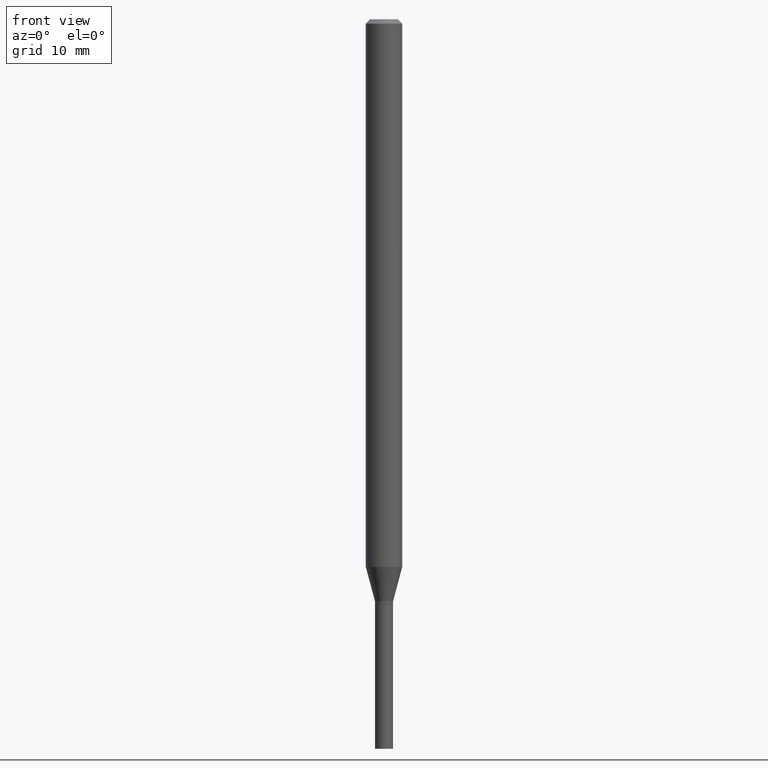
[diagram: clean part render]
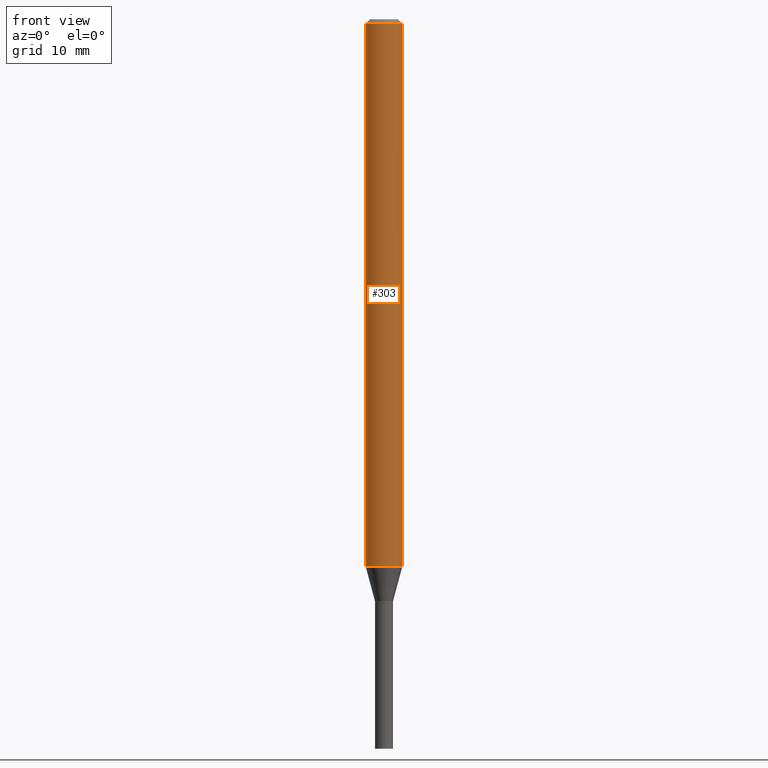
[diagram: same view with one face highlighted and labeled with its STEP entity id]
A machine part, front view. The second image highlights one B-rep face of the part: STEP entity #303.
In plain terms, the highlighted cylindrical surface (edge-blend (fillet) strip) has radius 1.5875 mm, axis along (-0, 0, 1).
Its self-contained STEP definition (entity closure, byte-faithful):
#3 = DIRECTION ( 'NONE',  ( 1.000000000000000000, -6.982962677686266711E-15, 4.876176775795935793E-29 ) ) ;
#8 = FACE_OUTER_BOUND ( 'NONE', #290, .T. ) ;
#26 = AXIS2_PLACEMENT_3D ( 'NONE', #237, #129, #95 ) ;
#53 = VERTEX_POINT ( 'NONE', #463 ) ;
#55 = CARTESIAN_POINT ( 'NONE',  ( -0.06250000000000000000, -6.107467428670576391E-15, -1.876440399561581707 ) ) ;
#68 = EDGE_CURVE ( 'NONE', #453, #53, #123, .T. ) ;
#85 = VERTEX_POINT ( 'NONE', #55 ) ;
#91 = ORIENTED_EDGE ( 'NONE', *, *, #68, .T. ) ;
#93 = CARTESIAN_POINT ( 'NONE',  ( 0.06250000000000000000, -4.364351673553916694E-16, 3.047610484872459871E-30 ) ) ;
#95 = DIRECTION ( 'NONE',  ( 1.000000000000000000, -6.982962677686262766E-15, 0.000000000000000000 ) ) ;
#98 = VECTOR ( 'NONE', #277, 39.37007874015748143 ) ;
#119 = CIRCLE ( 'NONE', #243, 0.06250000000000000000 ) ;
#122 = ORIENTED_EDGE ( 'NONE', *, *, #252, .F. ) ;
#123 = LINE ( 'NONE', #93, #323 ) ;
#129 = DIRECTION ( 'NONE',  ( -2.445468806185136597E-29, 3.491481338843145583E-15, 1.000000000000000000 ) ) ;
#136 = CARTESIAN_POINT ( 'NONE',  ( -0.06250000000000000000, -2.857875219451580624E-15, -0.01499999999999999944 ) ) ;
#144 = EDGE_CURVE ( 'NONE', #85, #453, #348, .T. ) ;
#151 = EDGE_CURVE ( 'NONE', #85, #336, #244, .T. ) ;
#157 = CARTESIAN_POINT ( 'NONE',  ( 0.06250000000000000000, -6.987991805876030676E-15, -1.876440399561581707 ) ) ;
#173 = CARTESIAN_POINT ( 'NONE',  ( -0.06250000000000000000, 4.440892098500626162E-16, -3.074334431409316114E-30 ) ) ;
#177 = DIRECTION ( 'NONE',  ( -2.445468806185136597E-29, 3.491481338843145583E-15, 1.000000000000000000 ) ) ;
#179 = CYLINDRICAL_SURFACE ( 'NONE', #429, 0.06250000000000000000 ) ;
#208 = CARTESIAN_POINT ( 'NONE',  ( 3.668203209277705088E-31, -5.237222008264718399E-17, -0.01499999999999999944 ) ) ;
#220 = ORIENTED_EDGE ( 'NONE', *, *, #144, .T. ) ;
#237 = CARTESIAN_POINT ( 'NONE',  ( 4.588776463793421999E-29, -6.551556638520639007E-15, -1.876440399561581707 ) ) ;
#243 = AXIS2_PLACEMENT_3D ( 'NONE', #208, #177, #294 ) ;
#244 = LINE ( 'NONE', #173, #98 ) ;
#249 = ORIENTED_EDGE ( 'NONE', *, *, #151, .F. ) ;
#252 = EDGE_CURVE ( 'NONE', #336, #53, #119, .T. ) ;
#277 = DIRECTION ( 'NONE',  ( -2.445468806185136877E-29, 3.491481338843145188E-15, 1.000000000000000000 ) ) ;
#279 = DIRECTION ( 'NONE',  ( -2.445468806185136877E-29, 3.491481338843145188E-15, 1.000000000000000000 ) ) ;
#290 = EDGE_LOOP ( 'NONE', ( #249, #220, #91, #122 ) ) ;
#294 = DIRECTION ( 'NONE',  ( 1.000000000000000000, -6.982962677686266711E-15, 0.000000000000000000 ) ) ;
#303 = ADVANCED_FACE ( 'NONE', ( #8 ), #179, .T. ) ;
#323 = VECTOR ( 'NONE', #279, 39.37007874015748143 ) ;
#336 = VERTEX_POINT ( 'NONE', #136 ) ;
#348 = CIRCLE ( 'NONE', #26, 0.06250000000000000000 ) ;
#362 = DIRECTION ( 'NONE',  ( -2.445468806185136597E-29, 3.491481338843145583E-15, 1.000000000000000000 ) ) ;
#429 = AXIS2_PLACEMENT_3D ( 'NONE', #439, #362, #3 ) ;
#439 = CARTESIAN_POINT ( 'NONE',  ( 0.000000000000000000, 0.000000000000000000, 0.000000000000000000 ) ) ;
#453 = VERTEX_POINT ( 'NONE', #157 ) ;
#463 = CARTESIAN_POINT ( 'NONE',  ( 0.06250000000000000000, -4.888073874380388472E-16, -0.01499999999999999944 ) ) ;